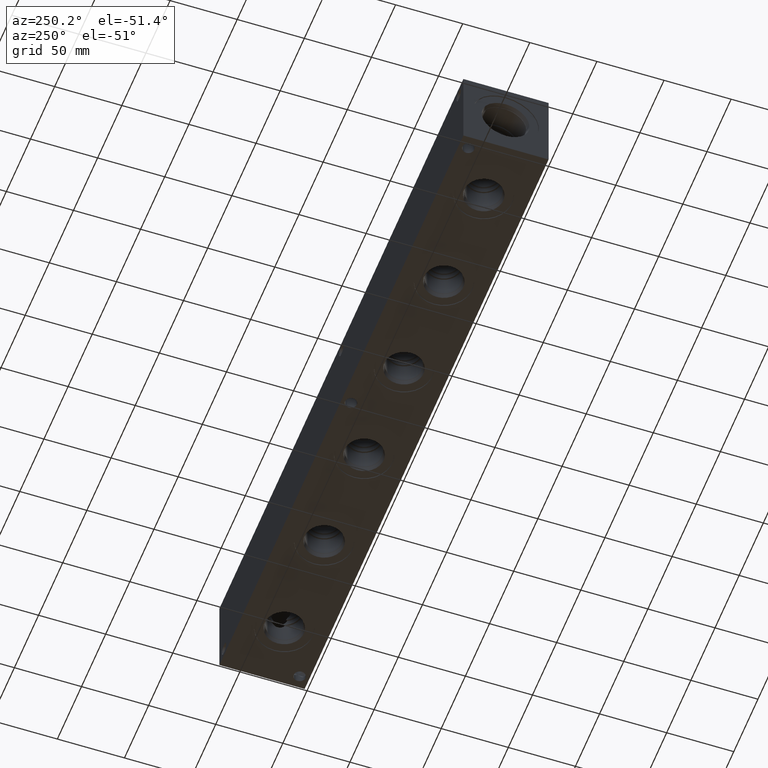
[diagram: clean part render]
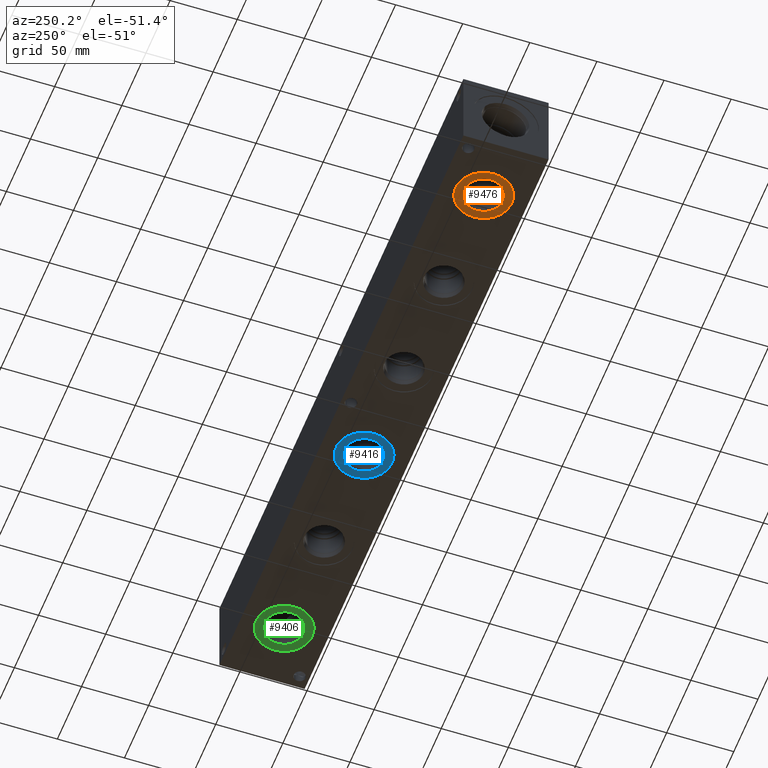
[diagram: same view with three faces highlighted in distinct colors, each labeled with its STEP entity id]
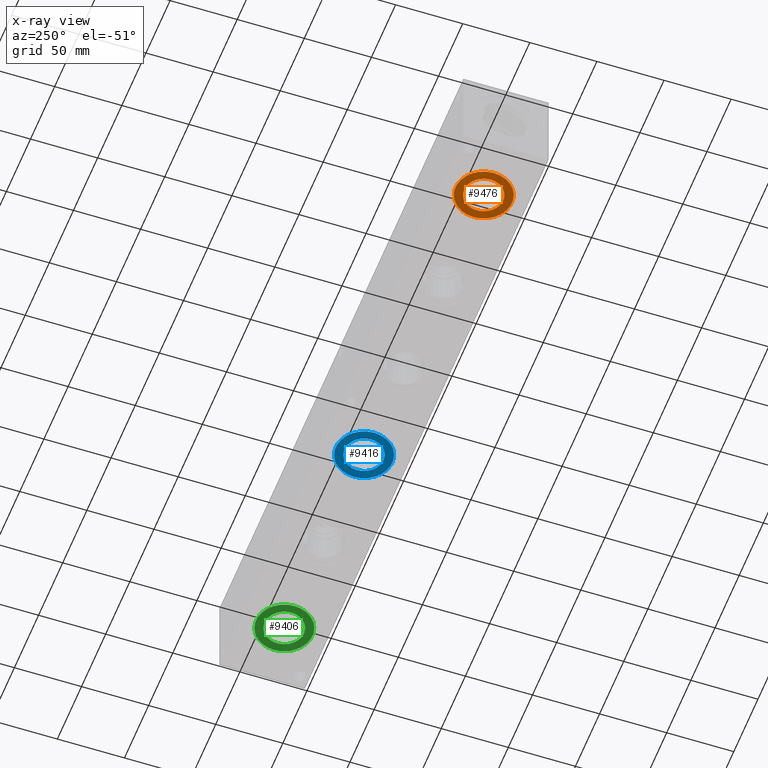
[diagram: x-ray of the same camera — body ghosted, the three highlighted faces saturated]
A machine part, auxiliary view with three faces highlighted in distinct colors.
The next image is the same camera in x-ray (body ghosted, the three faces saturated) — at least one of them is partly hidden behind the body in this view.
Their STEP definitions:

[orange] entity #9476 — the highlighted planar face has unit normal (0, 0, 1).
#316=CIRCLE('',#10020,21.0185);
#317=CIRCLE('',#10021,21.0185);
#318=CIRCLE('',#10023,14.5923);
#319=CIRCLE('',#10024,14.5923);
#515=FACE_BOUND('',#1824,.T.);
#1284=FACE_OUTER_BOUND('',#1823,.T.);
#1823=EDGE_LOOP('',(#7940,#7941));
#1824=EDGE_LOOP('',(#7942,#7943));
#4304=VERTEX_POINT('',#16293);
#4305=VERTEX_POINT('',#16295);
#4306=VERTEX_POINT('',#16299);
#4307=VERTEX_POINT('',#16300);
#5561=EDGE_CURVE('',#4304,#4305,#316,.T.);
#5562=EDGE_CURVE('',#4305,#4304,#317,.T.);
#5563=EDGE_CURVE('',#4306,#4307,#318,.T.);
#5564=EDGE_CURVE('',#4307,#4306,#319,.T.);
#7940=ORIENTED_EDGE('',*,*,#5562,.F.);
#7941=ORIENTED_EDGE('',*,*,#5561,.F.);
#7942=ORIENTED_EDGE('',*,*,#5563,.T.);
#7943=ORIENTED_EDGE('',*,*,#5564,.T.);
#8763=PLANE('',#10022);
#9476=ADVANCED_FACE('',(#1284,#515),#8763,.F.);
#10020=AXIS2_PLACEMENT_3D('',#16296,#11846,#11847);
#10021=AXIS2_PLACEMENT_3D('',#16297,#11848,#11849);
#10022=AXIS2_PLACEMENT_3D('',#16298,#11850,#11851);
#10023=AXIS2_PLACEMENT_3D('',#16301,#11852,#11853);
#10024=AXIS2_PLACEMENT_3D('',#16302,#11854,#11855);
#11846=DIRECTION('center_axis',(0.,0.,1.));
#11847=DIRECTION('ref_axis',(1.,0.,0.));
#11848=DIRECTION('center_axis',(0.,0.,1.));
#11849=DIRECTION('ref_axis',(1.,0.,0.));
#11850=DIRECTION('center_axis',(0.,0.,1.));
#11851=DIRECTION('ref_axis',(1.,0.,0.));
#11852=DIRECTION('center_axis',(0.,0.,1.));
#11853=DIRECTION('ref_axis',(1.,0.,0.));
#11854=DIRECTION('center_axis',(0.,0.,1.));
#11855=DIRECTION('ref_axis',(1.,0.,0.));
#16293=CARTESIAN_POINT('',(25.0063,31.75,0.7874));
#16295=CARTESIAN_POINT('',(67.0433,31.75,0.7874));
#16296=CARTESIAN_POINT('Origin',(46.0248,31.75,0.7874));
#16297=CARTESIAN_POINT('Origin',(46.0248,31.75,0.7874));
#16298=CARTESIAN_POINT('Origin',(60.6171,31.75,0.7874));
#16299=CARTESIAN_POINT('',(60.6171,31.75,0.7874));
#16300=CARTESIAN_POINT('',(31.4325,31.75,0.787399999999999));
#16301=CARTESIAN_POINT('Origin',(46.0248,31.75,0.7874));
#16302=CARTESIAN_POINT('Origin',(46.0248,31.75,0.7874));

[blue] entity #9416 — the highlighted planar face has unit normal (0, 0, 1).
#223=CIRCLE('',#9867,21.0185);
#224=CIRCLE('',#9868,21.0185);
#225=CIRCLE('',#9870,14.5923);
#226=CIRCLE('',#9871,14.5923);
#508=FACE_BOUND('',#1757,.T.);
#1224=FACE_OUTER_BOUND('',#1756,.T.);
#1756=EDGE_LOOP('',(#7617,#7618));
#1757=EDGE_LOOP('',(#7619,#7620));
#4173=VERTEX_POINT('',#15627);
#4174=VERTEX_POINT('',#15629);
#4175=VERTEX_POINT('',#15633);
#4176=VERTEX_POINT('',#15634);
#5377=EDGE_CURVE('',#4173,#4174,#223,.T.);
#5378=EDGE_CURVE('',#4174,#4173,#224,.T.);
#5379=EDGE_CURVE('',#4175,#4176,#225,.T.);
#5380=EDGE_CURVE('',#4176,#4175,#226,.T.);
#7617=ORIENTED_EDGE('',*,*,#5378,.F.);
#7618=ORIENTED_EDGE('',*,*,#5377,.F.);
#7619=ORIENTED_EDGE('',*,*,#5379,.T.);
#7620=ORIENTED_EDGE('',*,*,#5380,.T.);
#8754=PLANE('',#9869);
#9416=ADVANCED_FACE('',(#1224,#508),#8754,.F.);
#9867=AXIS2_PLACEMENT_3D('',#15630,#11505,#11506);
#9868=AXIS2_PLACEMENT_3D('',#15631,#11507,#11508);
#9869=AXIS2_PLACEMENT_3D('',#15632,#11509,#11510);
#9870=AXIS2_PLACEMENT_3D('',#15635,#11511,#11512);
#9871=AXIS2_PLACEMENT_3D('',#15636,#11513,#11514);
#11505=DIRECTION('center_axis',(0.,0.,1.));
#11506=DIRECTION('ref_axis',(1.,0.,0.));
#11507=DIRECTION('center_axis',(0.,0.,1.));
#11508=DIRECTION('ref_axis',(1.,0.,0.));
#11509=DIRECTION('center_axis',(0.,0.,1.));
#11510=DIRECTION('ref_axis',(1.,0.,0.));
#11511=DIRECTION('center_axis',(0.,0.,1.));
#11512=DIRECTION('ref_axis',(1.,0.,0.));
#11513=DIRECTION('center_axis',(0.,0.,1.));
#11514=DIRECTION('ref_axis',(1.,0.,0.));
#15627=CARTESIAN_POINT('',(272.6563,31.75,0.7874));
#15629=CARTESIAN_POINT('',(314.6933,31.75,0.7874));
#15630=CARTESIAN_POINT('Origin',(293.6748,31.75,0.7874));
#15631=CARTESIAN_POINT('Origin',(293.6748,31.75,0.7874));
#15632=CARTESIAN_POINT('Origin',(308.2671,31.75,0.7874));
#15633=CARTESIAN_POINT('',(308.2671,31.75,0.7874));
#15634=CARTESIAN_POINT('',(279.0825,31.75,0.787400000000004));
#15635=CARTESIAN_POINT('Origin',(293.6748,31.75,0.7874));
#15636=CARTESIAN_POINT('Origin',(293.6748,31.75,0.7874));

[green] entity #9406 — the highlighted planar face has unit normal (0, 0, 1).
#201=CIRCLE('',#9835,21.0185);
#202=CIRCLE('',#9836,21.0185);
#203=CIRCLE('',#9838,14.5923);
#204=CIRCLE('',#9839,14.5923);
#506=FACE_BOUND('',#1745,.T.);
#1214=FACE_OUTER_BOUND('',#1744,.T.);
#1744=EDGE_LOOP('',(#7563,#7564));
#1745=EDGE_LOOP('',(#7565,#7566));
#4151=VERTEX_POINT('',#15565);
#4152=VERTEX_POINT('',#15567);
#4153=VERTEX_POINT('',#15571);
#4154=VERTEX_POINT('',#15572);
#5347=EDGE_CURVE('',#4151,#4152,#201,.T.);
#5348=EDGE_CURVE('',#4152,#4151,#202,.T.);
#5349=EDGE_CURVE('',#4153,#4154,#203,.T.);
#5350=EDGE_CURVE('',#4154,#4153,#204,.T.);
#7563=ORIENTED_EDGE('',*,*,#5348,.F.);
#7564=ORIENTED_EDGE('',*,*,#5347,.F.);
#7565=ORIENTED_EDGE('',*,*,#5349,.T.);
#7566=ORIENTED_EDGE('',*,*,#5350,.T.);
#8752=PLANE('',#9837);
#9406=ADVANCED_FACE('',(#1214,#506),#8752,.F.);
#9835=AXIS2_PLACEMENT_3D('',#15568,#11433,#11434);
#9836=AXIS2_PLACEMENT_3D('',#15569,#11435,#11436);
#9837=AXIS2_PLACEMENT_3D('',#15570,#11437,#11438);
#9838=AXIS2_PLACEMENT_3D('',#15573,#11439,#11440);
#9839=AXIS2_PLACEMENT_3D('',#15574,#11441,#11442);
#11433=DIRECTION('center_axis',(0.,0.,1.));
#11434=DIRECTION('ref_axis',(1.,0.,0.));
#11435=DIRECTION('center_axis',(0.,0.,1.));
#11436=DIRECTION('ref_axis',(1.,0.,0.));
#11437=DIRECTION('center_axis',(0.,0.,1.));
#11438=DIRECTION('ref_axis',(1.,0.,0.));
#11439=DIRECTION('center_axis',(0.,0.,1.));
#11440=DIRECTION('ref_axis',(1.,0.,0.));
#11441=DIRECTION('center_axis',(0.,0.,1.));
#11442=DIRECTION('ref_axis',(1.,0.,0.));
#15565=CARTESIAN_POINT('',(437.7563,31.75,0.7874));
#15567=CARTESIAN_POINT('',(479.7933,31.75,0.7874));
#15568=CARTESIAN_POINT('Origin',(458.7748,31.75,0.7874));
#15569=CARTESIAN_POINT('Origin',(458.7748,31.75,0.7874));
#15570=CARTESIAN_POINT('Origin',(473.3671,31.75,0.7874));
#15571=CARTESIAN_POINT('',(473.3671,31.75,0.7874));
#15572=CARTESIAN_POINT('',(444.1825,31.75,0.787399999999991));
#15573=CARTESIAN_POINT('Origin',(458.7748,31.75,0.7874));
#15574=CARTESIAN_POINT('Origin',(458.7748,31.75,0.7874));